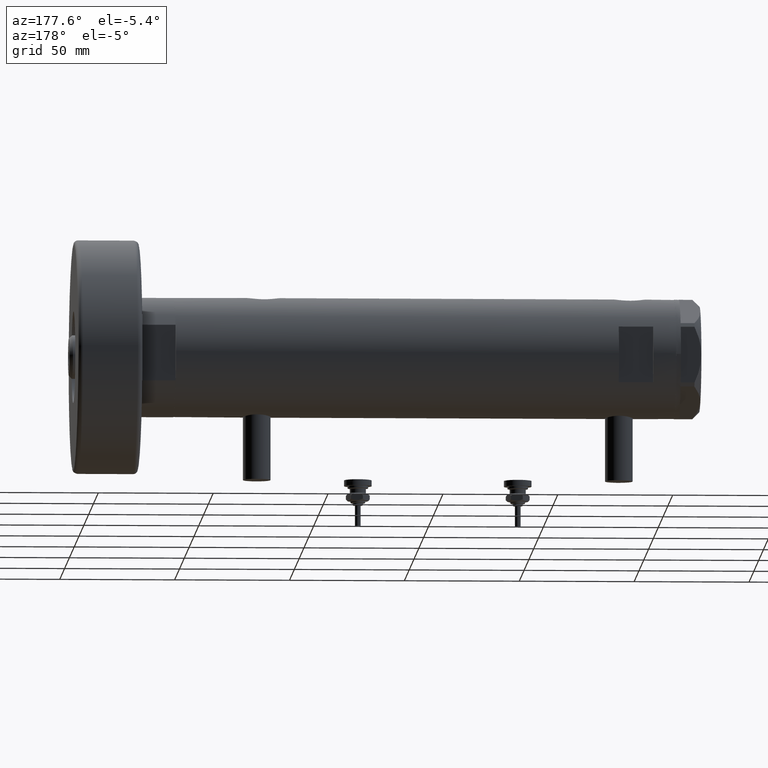
[diagram: clean part render]
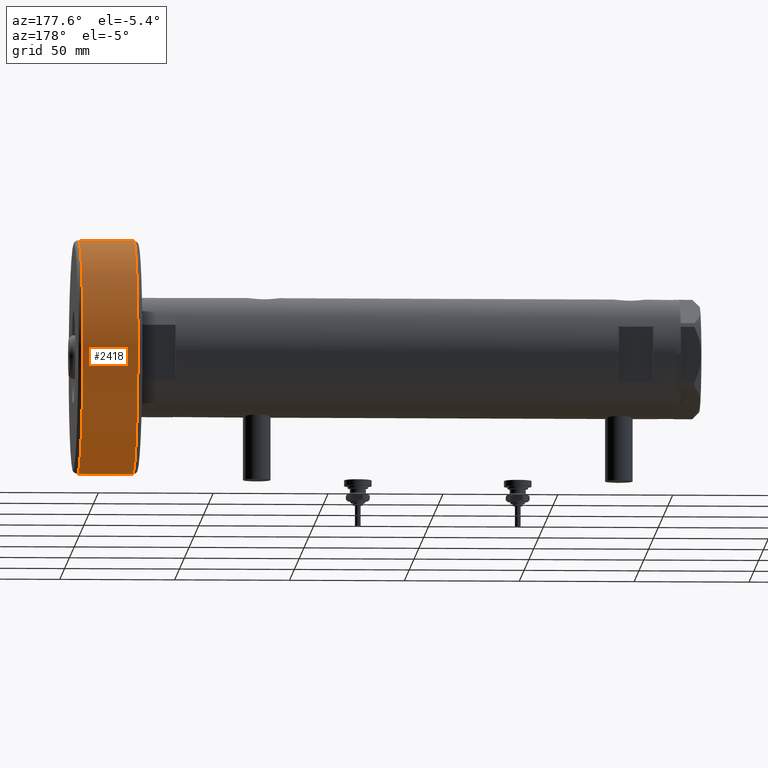
[diagram: same view with one face highlighted and labeled with its STEP entity id]
A machine part, auxiliary view. The second image highlights one B-rep face of the part: STEP entity #2418.
In plain terms, the highlighted cylindrical surface (partial cylindrical patch) has radius 51 mm, axis along (-1, -0, 0).
Its self-contained STEP definition (entity closure, byte-faithful):
#221 = DIRECTION ( 'NONE',  ( 1.000000000000000000, 0.000000000000000000, 0.000000000000000000 ) ) ;
#279 = CARTESIAN_POINT ( 'NONE',  ( 50.99999999999999289, 6.245698675651499656E-15, 28.00000000000000000 ) ) ;
#440 = DIRECTION ( 'NONE',  ( -0.000000000000000000, -0.000000000000000000, -1.000000000000000000 ) ) ;
#634 = EDGE_CURVE ( 'NONE', #5431, #644, #3822, .T. ) ;
#644 = VERTEX_POINT ( 'NONE', #4879 ) ;
#689 = CARTESIAN_POINT ( 'NONE',  ( 50.99999999999999289, 6.245698675651499656E-15, 26.00000000000000355 ) ) ;
#849 = LINE ( 'NONE', #279, #3401 ) ;
#953 = FACE_OUTER_BOUND ( 'NONE', #3878, .T. ) ;
#1226 = ORIENTED_EDGE ( 'NONE', *, *, #634, .F. ) ;
#1646 = CIRCLE ( 'NONE', #3580, 50.99999999999999289 ) ;
#1652 = CARTESIAN_POINT ( 'NONE',  ( 50.99999999999999289, 6.245698675651499656E-15, 1.999999999999998224 ) ) ;
#2000 = DIRECTION ( 'NONE',  ( -1.000000000000000000, 0.000000000000000000, 0.000000000000000000 ) ) ;
#2213 = CARTESIAN_POINT ( 'NONE',  ( 0.000000000000000000, 0.000000000000000000, 1.999999999999998224 ) ) ;
#2418 = ADVANCED_FACE ( 'NONE', ( #953 ), #2997, .T. ) ;
#2713 = DIRECTION ( 'NONE',  ( 0.000000000000000000, 0.000000000000000000, 1.000000000000000000 ) ) ;
#2858 = EDGE_CURVE ( 'NONE', #5431, #4837, #5312, .T. ) ;
#2997 = CYLINDRICAL_SURFACE ( 'NONE', #4673, 50.99999999999999289 ) ;
#3079 = EDGE_CURVE ( 'NONE', #3813, #644, #1646, .T. ) ;
#3227 = CARTESIAN_POINT ( 'NONE',  ( 0.000000000000000000, 0.000000000000000000, 26.00000000000000355 ) ) ;
#3250 = ORIENTED_EDGE ( 'NONE', *, *, #5803, .T. ) ;
#3401 = VECTOR ( 'NONE', #4946, 1000.000000000000000 ) ;
#3580 = AXIS2_PLACEMENT_3D ( 'NONE', #2213, #2713, #221 ) ;
#3697 = DIRECTION ( 'NONE',  ( 1.000000000000000000, 0.000000000000000000, 0.000000000000000000 ) ) ;
#3813 = VERTEX_POINT ( 'NONE', #1652 ) ;
#3822 = LINE ( 'NONE', #4413, #5073 ) ;
#3878 = EDGE_LOOP ( 'NONE', ( #4603, #3250, #4219, #1226 ) ) ;
#3904 = AXIS2_PLACEMENT_3D ( 'NONE', #3227, #4734, #3697 ) ;
#3994 = CARTESIAN_POINT ( 'NONE',  ( -50.99999999999999289, 0.000000000000000000, 26.00000000000000355 ) ) ;
#4219 = ORIENTED_EDGE ( 'NONE', *, *, #3079, .T. ) ;
#4413 = CARTESIAN_POINT ( 'NONE',  ( -50.99999999999999289, 0.000000000000000000, 28.00000000000000000 ) ) ;
#4603 = ORIENTED_EDGE ( 'NONE', *, *, #2858, .T. ) ;
#4673 = AXIS2_PLACEMENT_3D ( 'NONE', #5079, #440, #2000 ) ;
#4734 = DIRECTION ( 'NONE',  ( -0.000000000000000000, -0.000000000000000000, -1.000000000000000000 ) ) ;
#4837 = VERTEX_POINT ( 'NONE', #689 ) ;
#4879 = CARTESIAN_POINT ( 'NONE',  ( -50.99999999999999289, 0.000000000000000000, 1.999999999999998224 ) ) ;
#4946 = DIRECTION ( 'NONE',  ( -0.000000000000000000, -0.000000000000000000, -1.000000000000000000 ) ) ;
#5073 = VECTOR ( 'NONE', #6019, 1000.000000000000000 ) ;
#5079 = CARTESIAN_POINT ( 'NONE',  ( 0.000000000000000000, 0.000000000000000000, 28.00000000000000000 ) ) ;
#5312 = CIRCLE ( 'NONE', #3904, 50.99999999999999289 ) ;
#5431 = VERTEX_POINT ( 'NONE', #3994 ) ;
#5803 = EDGE_CURVE ( 'NONE', #4837, #3813, #849, .T. ) ;
#6019 = DIRECTION ( 'NONE',  ( -0.000000000000000000, -0.000000000000000000, -1.000000000000000000 ) ) ;